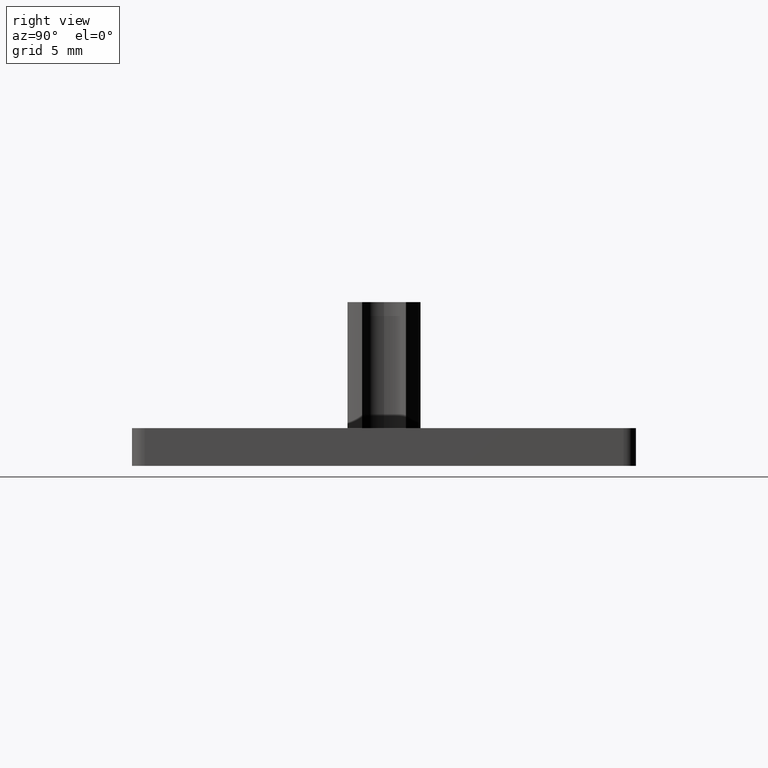
[diagram: clean part render]
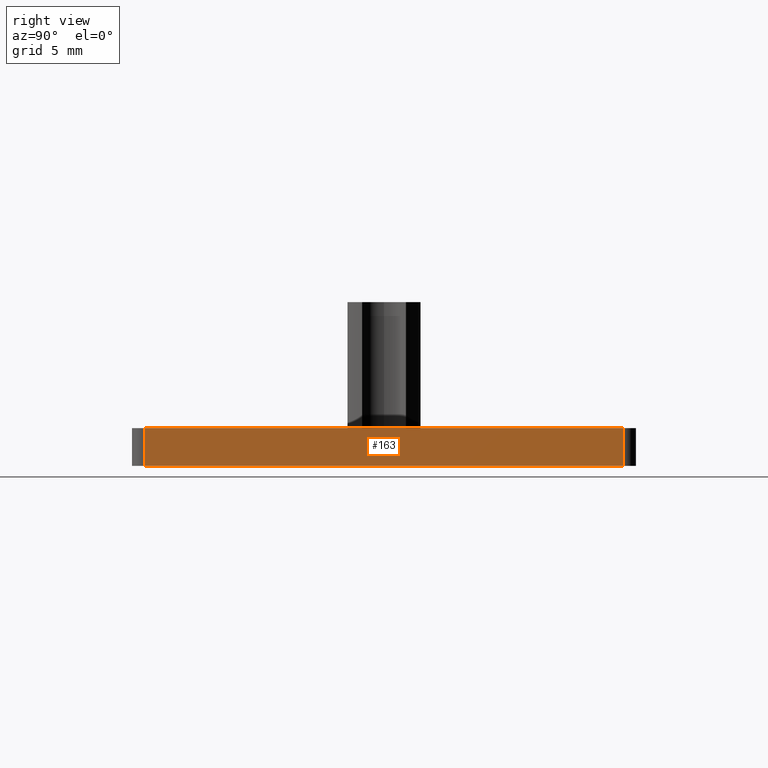
[diagram: same view with one face highlighted and labeled with its STEP entity id]
A machine part, right view. The second image highlights one B-rep face of the part: STEP entity #163.
In plain terms, the highlighted planar face has unit normal (-1, 0, 0).
Its self-contained STEP definition (entity closure, byte-faithful):
#124=CARTESIAN_POINT('',(-6.509734513273321,-29.250442477875609,-0.150000000000000));
#125=DIRECTION('',(-1.0,0.0,0.0));
#126=DIRECTION('',(0.0,0.0,1.0));
#127=AXIS2_PLACEMENT_3D('',#124,#125,#126);
#128=PLANE('',#127);
#129=CARTESIAN_POINT('',(-6.509734513273321,-27.350442477875610,3.0));
#130=VERTEX_POINT('',#129);
#131=CARTESIAN_POINT('',(-6.509734513273321,10.649557522124383,3.0));
#132=VERTEX_POINT('',#131);
#133=CARTESIAN_POINT('',(-6.509734513273321,-27.350442477875610,3.0));
#134=DIRECTION('',(0.0,1.0,0.0));
#135=VECTOR('',#134,37.999999999999993);
#136=LINE('',#133,#135);
#137=EDGE_CURVE('',#130,#132,#136,.T.);
#138=ORIENTED_EDGE('',*,*,#137,.F.);
#139=CARTESIAN_POINT('',(-6.509734513273321,-27.350442477875610,0.0));
#140=VERTEX_POINT('',#139);
#141=CARTESIAN_POINT('',(-6.509734513273321,-27.350442477875610,3.0));
#142=DIRECTION('',(0.0,0.0,-1.0));
#143=VECTOR('',#142,3.0);
#144=LINE('',#141,#143);
#145=EDGE_CURVE('',#130,#140,#144,.T.);
#146=ORIENTED_EDGE('',*,*,#145,.T.);
#147=CARTESIAN_POINT('',(-6.509734513273321,10.649557522124383,0.0));
#148=VERTEX_POINT('',#147);
#149=CARTESIAN_POINT('',(-6.509734513273321,-27.350442477875610,0.0));
#150=DIRECTION('',(0.0,1.0,0.0));
#151=VECTOR('',#150,37.999999999999993);
#152=LINE('',#149,#151);
#153=EDGE_CURVE('',#140,#148,#152,.T.);
#154=ORIENTED_EDGE('',*,*,#153,.T.);
#155=CARTESIAN_POINT('',(-6.509734513273321,10.649557522124383,0.0));
#156=DIRECTION('',(0.0,0.0,1.0));
#157=VECTOR('',#156,3.0);
#158=LINE('',#155,#157);
#159=EDGE_CURVE('',#148,#132,#158,.T.);
#160=ORIENTED_EDGE('',*,*,#159,.T.);
#161=EDGE_LOOP('',(#138,#146,#154,#160));
#162=FACE_OUTER_BOUND('',#161,.T.);
#163=ADVANCED_FACE('',(#162),#128,.F.);